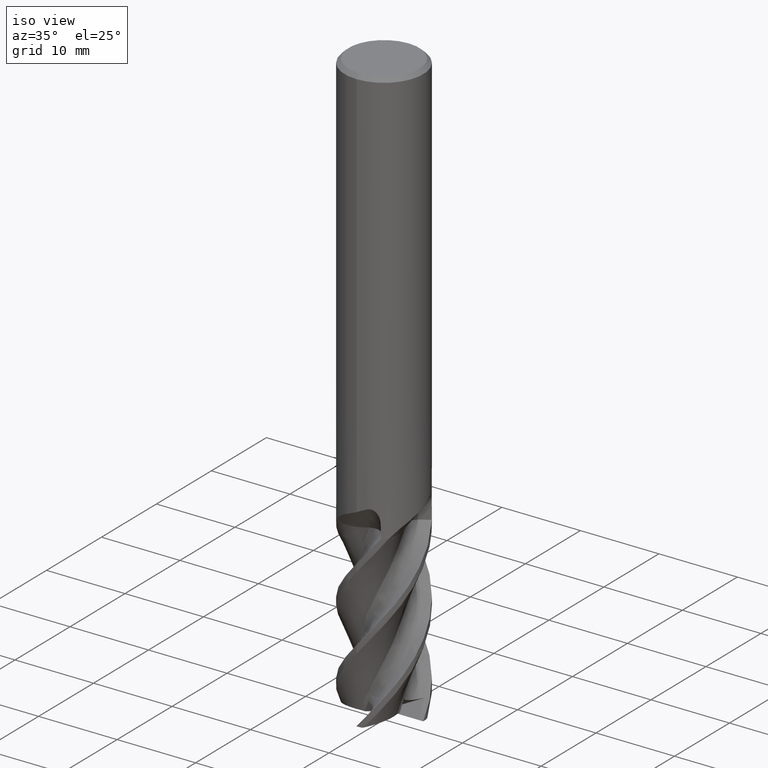
[diagram: clean part render]
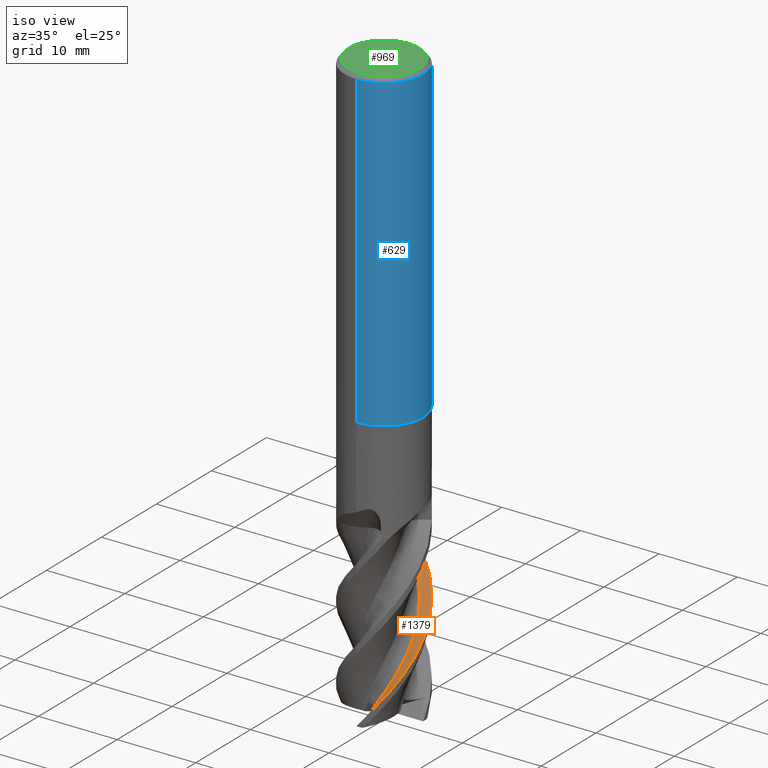
[diagram: same view with three faces highlighted in distinct colors, each labeled with its STEP entity id]
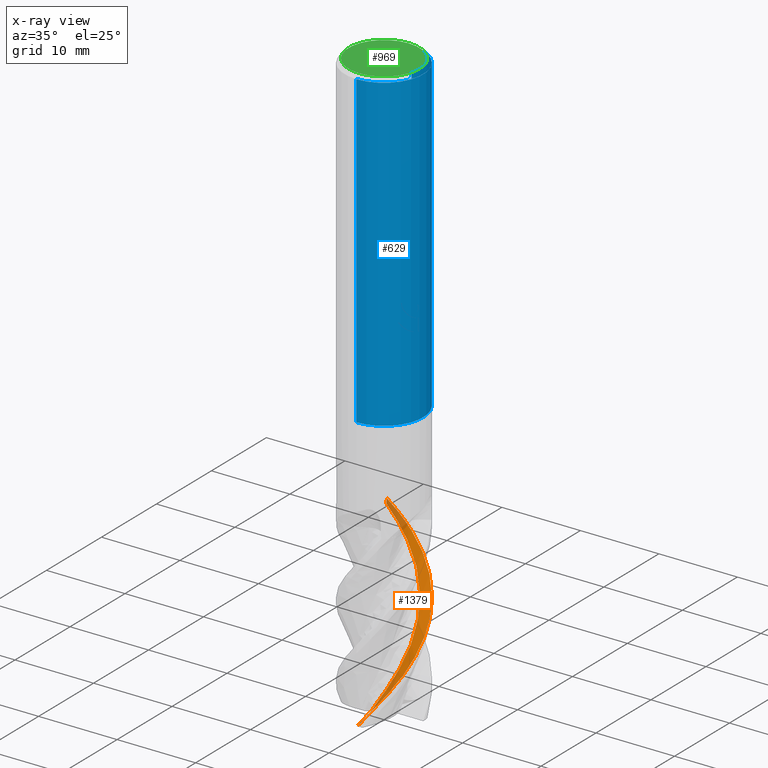
[diagram: x-ray of the same camera — body ghosted, the three highlighted faces saturated]
A machine part, iso view with three faces highlighted in distinct colors.
The next image is the same camera in x-ray (body ghosted, the three faces saturated) — at least one of them is partly hidden behind the body in this view.
Their STEP definitions:

[orange] entity #1379 — the highlighted face is a freeform B-spline surface patch.
#841=VERTEX_POINT('',#1856);
#881=VERTEX_POINT('',#1903);
#923=EDGE_CURVE('',#1193,#1201,#1947,.T.);
#987=EDGE_CURVE('',#841,#989,#2016,.T.);
#989=VERTEX_POINT('',#2018);
#1023=EDGE_CURVE('',#1457,#881,#2057,.T.);
#1099=EDGE_CURVE('',#1303,#1457,#2137,.T.);
#1193=VERTEX_POINT('',#2239);
#1201=VERTEX_POINT('',#2247);
#1303=VERTEX_POINT('',#2360);
#1357=EDGE_CURVE('',#881,#841,#2418,.T.);
#1379=ADVANCED_FACE('',(#2443),#2444,.T.);
#1389=EDGE_CURVE('',#989,#1193,#2455,.T.);
#1439=EDGE_CURVE('',#1201,#1303,#2510,.T.);
#1457=VERTEX_POINT('',#2532);
#1856=CARTESIAN_POINT('',(-7.65326625446156E-010,4.99991486074942,-56.269364871849));
#1903=CARTESIAN_POINT('',(-2.61261439095677,4.26300903754209,-53.0));
#1947=B_SPLINE_CURVE_WITH_KNOTS('',3,(#5087,#5088,#5089,#5090,#5091,#5092,#5093,#5094,#5095,#5096,#5097,#5098,#5099,#5100,#5101,#5102,#5103,#5104,#5105,#5106,#5107,#5108,#5109,#5110,#5111,#5112,#5113,#5114),.UNSPECIFIED.,.F.,.F.,(4,2,2,2,2,2,2,2,2,2,2,2,2,4),(0.0,0.818910027269427,1.139304190281,1.55244608751648,2.41847447880816,3.02823276560389,3.46285481992463,3.91399523409388,4.59992441175915,5.57162006165752,9.5524687004458,16.2999496018072,16.7000792223457,21.8881820002481),.UNSPECIFIED.);
#2016=B_SPLINE_CURVE_WITH_KNOTS('',3,(#5667,#5668,#5669,#5670,#5671,#5672,#5673,#5674,#5675,#5676,#5677,#5678,#5679,#5680,#5681,#5682,#5683,#5684,#5685,#5686,#5687,#5688,#5689,#5690,#5691,#5692,#5693,#5694,#5695,#5696,#5697,#5698,#5699,#5700,#5701,#5702,#5703,#5704,#5705,#5706,#5707,#5708),.UNSPECIFIED.,.F.,.F.,(4,2,2,2,2,2,2,2,2,2,2,2,2,2,2,2,2,2,2,2,4),(0.0,1.53652861004963,3.8725065586441,5.42160350032149,6.57529617109107,7.1477833631407,8.50903370962672,10.1654585054857,11.2927636974678,13.4999329352629,14.6132511811853,16.8163672943986,17.9185211648541,20.1098976477452,21.1923327849298,21.968897730353,23.3282770619923,24.3584957239759,25.8627631583905,26.6191248216013,27.3736435639775),.UNSPECIFIED.);
#2018=CARTESIAN_POINT('',(-1.67180449841524E-014,-4.99999994173844,-74.9871824572319));
#2057=B_SPLINE_CURVE_WITH_KNOTS('',3,(#6024,#6025,#6026,#6027,#6028,#6029),.UNSPECIFIED.,.F.,.F.,(4,2,4),(0.0,0.718749972684841,1.43749994537414),.UNSPECIFIED.);
#2137=B_SPLINE_CURVE_WITH_KNOTS('',3,(#6408,#6409,#6410,#6411,#6412,#6413,#6414,#6415,#6416,#6417,#6418,#6419,#6420,#6421,#6422,#6423,#6424,#6425,#6426,#6427,#6428,#6429,#6430,#6431,#6432,#6433,#6434,#6435,#6436,#6437,#6438,#6439,#6440,#6441,#6442,#6443,#6444,#6445,#6446,#6447,#6448,#6449,#6450,#6451,#6452,#6453,#6454,#6455,#6456,#6457,#6458,#6459,#6460),.UNSPECIFIED.,.F.,.F.,(4,1,2,1,2,1,2,1,2,1,2,1,2,1,2,1,2,1,2,1,2,1,2,1,2,1,2,1,2,1,2,1,2,1,4),(0.0,0.658549239123413,1.31709847824683,1.97564771737024,2.63419695649365,3.95129543474048,5.2683939129873,6.58549239123413,7.90259086948096,9.21968934772778,10.5367878259746,11.8538863042214,13.1709847824683,14.4880832607151,15.8051817389619,17.1222802172087,18.4393786954556,19.7564771737024,21.0735756519492,22.390674130196,23.7077726084429,25.0248710866897,26.3419695649365,27.6590680431833,28.9761665214302,30.293264999677,31.6103634779238,32.9274619561707,34.2445604344175,35.5616589126643,36.8787573909111,38.195855869158,39.5129543474048,40.8300528256516,42.1471513038984),.UNSPECIFIED.);
#2239=CARTESIAN_POINT('',(-0.000292842337415094,-4.99999993474591,-74.9875307460198));
#2247=CARTESIAN_POINT('',(1.41002267526632,-4.17503026798835,-73.0449553888539));
#2360=CARTESIAN_POINT('',(1.09334985087204,-3.60114669389617,-73.2244277868559));
#2418=B_SPLINE_CURVE_WITH_KNOTS('',3,(#8065,#8066,#8067,#8068,#8069,#8070,#8071,#8072,#8073,#8074,#8075,#8076,#8077,#8078,#8079,#8080,#8081,#8082,#8083,#8084,#8085,#8086,#8087,#8088,#8089,#8090,#8091,#8092,#8093,#8094,#8095,#8096,#8097,#8098,#8099,#8100,#8101,#8102,#8103,#8104,#8105,#8106),.UNSPECIFIED.,.F.,.F.,(4,2,2,2,2,2,2,2,2,2,2,2,2,2,2,2,2,2,2,2,4),(0.0,1.53652861004963,3.8725065586441,5.42160350032149,6.57529617109107,7.1477833631407,8.50903370962672,10.1654585054857,11.2927636974678,13.4999329352629,14.6132511811853,16.8163672943986,17.9185211648541,20.1098976477452,21.1923327849298,21.968897730353,23.3282770619923,24.3584957239759,25.8627631583905,26.6191248216013,27.3736435639775),.UNSPECIFIED.);
#2443=FACE_OUTER_BOUND('',#8157,.T.);
#2444=B_SPLINE_SURFACE_WITH_KNOTS('',3,3,((#8158,#8159,#8160,#8161,#8162,#8163,#8164,#8165,#8166,#8167,#8168,#8169,#8170,#8171,#8172,#8173,#8174,#8175,#8176,#8177,#8178,#8179,#8180,#8181,#8182,#8183,#8184,#8185,#8186,#8187,#8188,#8189,#8190,#8191,#8192,#8193,#8194,#8195,#8196,#8197,#8198,#8199,#8200,#8201,#8202,#8203,#8204,#8205,#8206,#8207,#8208,#8209,#8210),(#8211,#8212,#8213,#8214,#8215,#8216,#8217,#8218,#8219,#8220,#8221,#8222,#8223,#8224,#8225,#8226,#8227,#8228,#8229,#8230,#8231,#8232,#8233,#8234,#8235,#8236,#8237,#8238,#8239,#8240,#8241,#8242,#8243,#8244,#8245,#8246,#8247,#8248,#8249,#8250,#8251,#8252,#8253,#8254,#8255,#8256,#8257,#8258,#8259,#8260,#8261,#8262,#8263),(#8264,#8265,#8266,#8267,#8268,#8269,#8270,#8271,#8272,#8273,#8274,#8275,#8276,#8277,#8278,#8279,#8280,#8281,#8282,#8283,#8284,#8285,#8286,#8287,#8288,#8289,#8290,#8291,#8292,#8293,#8294,#8295,#8296,#8297,#8298,#8299,#8300,#8301,#8302,#8303,#8304,#8305,#8306,#8307,#8308,#8309,#8310,#8311,#8312,#8313,#8314,#8315,#8316),(#8317,#8318,#8319,#8320,#8321,#8322,#8323,#8324,#8325,#8326,#8327,#8328,#8329,#8330,#8331,#8332,#8333,#8334,#8335,#8336,#8337,#8338,#8339,#8340,#8341,#8342,#8343,#8344,#8345,#8346,#8347,#8348,#8349,#8350,#8351,#8352,#8353,#8354,#8355,#8356,#8357,#8358,#8359,#8360,#8361,#8362,#8363,#8364,#8365,#8366,#8367,#8368,#8369)),.UNSPECIFIED.,.F.,.F.,.F.,(4,4),(4,1,2,1,2,1,2,1,2,1,2,1,2,1,2,1,2,1,2,1,2,1,2,1,2,1,2,1,2,1,2,1,2,1,4),(0.0,1.4375),(0.0,0.658549239123413,1.31709847824683,1.97564771737024,2.63419695649365,3.95129543474048,5.2683939129873,6.58549239123413,7.90259086948096,9.21968934772778,10.5367878259746,11.8538863042214,13.1709847824683,14.4880832607151,15.8051817389619,17.1222802172087,18.4393786954556,19.7564771737024,21.0735756519492,22.390674130196,23.7077726084429,25.0248710866897,26.3419695649365,27.6590680431833,28.9761665214302,30.293264999677,31.6103634779238,32.9274619561707,34.2445604344175,35.5616589126643,36.8787573909111,38.195855869158,39.5129543474048,40.8300528256516,42.1471513038984),.UNSPECIFIED.);
#2455=B_SPLINE_CURVE_WITH_KNOTS('',3,(#8605,#8606,#8607,#8608,#8609,#8610,#8611,#8612,#8613,#8614,#8615,#8616,#8617,#8618,#8619,#8620,#8621,#8622,#8623,#8624,#8625,#8626,#8627,#8628,#8629,#8630,#8631,#8632,#8633,#8634,#8635,#8636,#8637,#8638,#8639,#8640,#8641,#8642,#8643,#8644,#8645,#8646),.UNSPECIFIED.,.F.,.F.,(4,2,2,2,2,2,2,2,2,2,2,2,2,2,2,2,2,2,2,2,4),(0.0,1.53652861004963,3.8725065586441,5.42160350032149,6.57529617109107,7.1477833631407,8.50903370962672,10.1654585054857,11.2927636974678,13.4999329352629,14.6132511811853,16.8163672943986,17.9185211648541,20.1098976477452,21.1923327849298,21.968897730353,23.3282770619923,24.3584957239759,25.8627631583905,26.6191248216013,27.3736435639775),.UNSPECIFIED.);
#2510=B_SPLINE_CURVE_WITH_KNOTS('',3,(#9616,#9617,#9618,#9619,#9620,#9621),.UNSPECIFIED.,.F.,.F.,(4,2,4),(0.0,0.752535492609384,1.51115268182924),.UNSPECIFIED.);
#2532=CARTESIAN_POINT('',(-1.96059927409612,3.21236791552506,-53.0));
#5087=CARTESIAN_POINT('',(-0.00509907215996025,-5.11290642858239,-74.9938674179884));
#5088=CARTESIAN_POINT('',(0.00493925825145611,-4.84043774036645,-74.9807269565458));
#5089=CARTESIAN_POINT('',(0.0202261561503288,-4.68909296164231,-74.9600373415671));
#5090=CARTESIAN_POINT('',(0.0581561953219352,-4.55298202195657,-74.9080856327629));
#5091=CARTESIAN_POINT('',(0.0710244248506431,-4.52152494355637,-74.8904224815266));
#5092=CARTESIAN_POINT('',(0.107596509648929,-4.46040126615182,-74.8401502076377));
#5093=CARTESIAN_POINT('',(0.133655054515092,-4.43342970588084,-74.8042872393337));
#5094=CARTESIAN_POINT('',(0.238971433150938,-4.36212152233842,-74.6592489356774));
#5095=CARTESIAN_POINT('',(0.341823032197614,-4.33340506696298,-74.5174996861231));
#5096=CARTESIAN_POINT('',(0.405866587306567,-4.31618664710234,-74.4292336654682));
#5097=CARTESIAN_POINT('',(0.433195035938753,-4.31037421216321,-74.3915651365869));
#5098=CARTESIAN_POINT('',(0.478624698638012,-4.30202765650868,-74.3289431720632));
#5099=CARTESIAN_POINT('',(0.497789043384655,-4.29890955131616,-74.3025252775519));
#5100=CARTESIAN_POINT('',(0.536337850246815,-4.2931479074456,-74.2493847444821));
#5101=CARTESIAN_POINT('',(0.556241182464059,-4.2904471023485,-74.2219467777625));
#5102=CARTESIAN_POINT('',(0.605687201260473,-4.28414628404246,-74.1537813493613));
#5103=CARTESIAN_POINT('',(0.636649298760356,-4.28058640227128,-74.1110965432735));
#5104=CARTESIAN_POINT('',(0.707964866125913,-4.27271053970132,-74.0127790127445));
#5105=CARTESIAN_POINT('',(0.749235699063434,-4.26841738256696,-73.9558812676711));
#5106=CARTESIAN_POINT('',(0.986779491703851,-4.24312559251426,-73.6283946771745));
#5107=CARTESIAN_POINT('',(1.1207919348293,-4.22721026069271,-73.4436444444906));
#5108=CARTESIAN_POINT('',(1.61288815638279,-4.14038459555574,-72.765311180116));
#5109=CARTESIAN_POINT('',(1.90814684804338,-4.05991748490139,-72.3583829456257));
#5110=CARTESIAN_POINT('',(2.22528598728239,-3.93670771729118,-71.9213935708557));
#5111=CARTESIAN_POINT('',(2.24302346341751,-3.92968704730011,-71.8969532485149));
#5112=CARTESIAN_POINT('',(2.49054582366674,-3.83019432385926,-71.5558981417049));
#5113=CARTESIAN_POINT('',(2.66912915023488,-3.75628923888835,-71.3098379364503));
#5114=CARTESIAN_POINT('',(2.87588199104898,-3.66075174243122,-71.0249901781374));
#5667=CARTESIAN_POINT('',(-2.61261439095677,4.2630090375421,-53.0));
#5668=CARTESIAN_POINT('',(-2.33168004558554,4.4351836725836,-53.3921176506064));
#5669=CARTESIAN_POINT('',(-2.03673509544618,4.57814624311085,-53.7713207831301));
#5670=CARTESIAN_POINT('',(-1.25704679896179,4.8651927457005,-54.7638825652976));
#5671=CARTESIAN_POINT('',(-0.761107324385879,4.96746327774888,-55.373158147886));
#5672=CARTESIAN_POINT('',(0.0790656595763085,5.01053121202835,-56.3637523834356));
#5673=CARTESIAN_POINT('',(0.416518365996174,4.99412878286698,-56.7611516654567));
#5674=CARTESIAN_POINT('',(1.00307250685836,4.90481280183536,-57.4740158585334));
#5675=CARTESIAN_POINT('',(1.25061919179365,4.8476538876043,-57.7795899249475));
#5676=CARTESIAN_POINT('',(1.61349589479844,4.73410716490701,-58.2338579557111));
#5677=CARTESIAN_POINT('',(1.73281234998994,4.69177392648897,-58.3842908734686));
#5678=CARTESIAN_POINT('',(2.13141117214381,4.53294467198142,-58.8905733096228));
#5679=CARTESIAN_POINT('',(2.40123121220013,4.39616840391013,-59.2443495991072));
#5680=CARTESIAN_POINT('',(2.97348756051828,4.03674191230227,-60.0544978895682));
#5681=CARTESIAN_POINT('',(3.26559886903402,3.80452283007607,-60.5034380490632));
#5682=CARTESIAN_POINT('',(3.70965563138546,3.36188905187369,-61.2481355311029));
#5683=CARTESIAN_POINT('',(3.87419014244613,3.17089455765674,-61.5404524431265));
#5684=CARTESIAN_POINT('',(4.31999634132499,2.56601732557089,-62.4339160892452));
#5685=CARTESIAN_POINT('',(4.55391772620417,2.12357044354596,-63.0368048380341));
#5686=CARTESIAN_POINT('',(4.80178830902073,1.41615351884807,-63.9256555975346));
#5687=CARTESIAN_POINT('',(4.86640822460394,1.17515797025241,-64.215160052872));
#5688=CARTESIAN_POINT('',(5.0055978720365,0.438031494846633,-65.1082176862449));
#5689=CARTESIAN_POINT('',(5.02450449832303,-0.0635432228684398,-65.7127725922448));
#5690=CARTESIAN_POINT('',(4.9404004770492,-0.809107749185026,-66.601057502832));
#5691=CARTESIAN_POINT('',(4.8941938389867,-1.05335629132313,-66.8898525105129));
#5692=CARTESIAN_POINT('',(4.69970447192065,-1.77812959396181,-67.7843461822159));
#5693=CARTESIAN_POINT('',(4.49845069719367,-2.23956275262033,-68.3905914023174));
#5694=CARTESIAN_POINT('',(4.09882127836186,-2.87417627473842,-69.2770402795582));
#5695=CARTESIAN_POINT('',(3.95223577838147,-3.07275341247817,-69.5643887302561));
#5696=CARTESIAN_POINT('',(3.67274960617241,-3.39745716730654,-70.0756255298554));
#5697=CARTESIAN_POINT('',(3.54907444877281,-3.52641288637777,-70.2900765120168));
#5698=CARTESIAN_POINT('',(3.19158127875147,-3.86145760756478,-70.8793305366102));
#5699=CARTESIAN_POINT('',(2.94333353528893,-4.05413745722418,-71.2558811808448));
#5700=CARTESIAN_POINT('',(2.47521932738776,-4.35089034823269,-71.9104101468572));
#5701=CARTESIAN_POINT('',(2.26576768677861,-4.46363918758356,-72.1874452171916));
#5702=CARTESIAN_POINT('',(1.72561286428544,-4.70591340091661,-72.8937297184183));
#5703=CARTESIAN_POINT('',(1.39111136930597,-4.81535751164769,-73.3175233325412));
#5704=CARTESIAN_POINT('',(0.875905304157877,-4.92583215434585,-73.9483247562566));
#5705=CARTESIAN_POINT('',(0.700815825954719,-4.95384155466905,-74.1590797955766));
#5706=CARTESIAN_POINT('',(0.34696433149491,-4.99110902787555,-74.5776714878327));
#5707=CARTESIAN_POINT('',(0.16959639438435,-5.00037612590725,-74.7854062928888));
#5708=CARTESIAN_POINT('',(-0.0107752814717103,-4.99998838931744,-75.0));
#6024=CARTESIAN_POINT('',(-1.96059927418109,3.21236791547233,-53.0));
#6025=CARTESIAN_POINT('',(-2.08693199821651,3.41593660679313,-53.0));
#6026=CARTESIAN_POINT('',(-2.21326452617912,3.61950541979492,-53.0));
#6027=CARTESIAN_POINT('',(-2.46592918995726,4.02664328916154,-53.0));
#6028=CARTESIAN_POINT('',(-2.59226132577292,4.23021234552656,-53.0));
#6029=CARTESIAN_POINT('',(-2.71859326551368,4.43378152357256,-53.0));
#6408=CARTESIAN_POINT('',(-3.75846504508571,0.174203199938611,-85.0));
#6409=CARTESIAN_POINT('',(-3.75922417421371,0.180367674164918,-84.781257534348));
#6410=CARTESIAN_POINT('',(-3.76659625728198,0.101343983706272,-84.3437017067897));
#6411=CARTESIAN_POINT('',(-3.76514038195834,-0.166872443505842,-83.9061227876956));
#6412=CARTESIAN_POINT('',(-3.73059290488503,-0.525748748329141,-83.4686790293266));
#6413=CARTESIAN_POINT('',(-3.67418562141778,-0.853419521872618,-83.0312599785647));
#6414=CARTESIAN_POINT('',(-3.59371181488687,-1.12390867597708,-82.5937922235737));
#6415=CARTESIAN_POINT('',(-3.46384525798217,-1.49508836855377,-81.9374991454781));
#6416=CARTESIAN_POINT('',(-3.2393925556906,-1.97184736327811,-81.0624396209978));
#6417=CARTESIAN_POINT('',(-2.90400512153349,-2.4110401264588,-80.1874068062779));
#6418=CARTESIAN_POINT('',(-2.50649264281788,-2.82167058888249,-79.3124420205515));
#6419=CARTESIAN_POINT('',(-2.07729339410272,-3.17357801079059,-78.4374849235509));
#6420=CARTESIAN_POINT('',(-1.58763876135109,-3.42370937660027,-77.5624771201081));
#6421=CARTESIAN_POINT('',(-1.06179339499986,-3.62139719684409,-76.6874636115137));
#6422=CARTESIAN_POINT('',(-0.528045233548038,-3.7560348194121,-75.812465434064));
#6423=CARTESIAN_POINT('',(0.02275638126561,-3.77389672882266,-74.9374521777107));
#6424=CARTESIAN_POINT('',(0.583877475730668,-3.72844242991629,-74.0624554440398));
#6425=CARTESIAN_POINT('',(1.12416091114104,-3.62250415173364,-73.1874694992744));
#6426=CARTESIAN_POINT('',(1.62960945578931,-3.40400478492427,-72.3124569222851));
#6427=CARTESIAN_POINT('',(2.11788147370052,-3.12358907741629,-71.4374554871606));
#6428=CARTESIAN_POINT('',(2.56162684890057,-2.79723400787934,-70.5624665057969));
#6429=CARTESIAN_POINT('',(2.92567780536026,-2.38395213524524,-69.6874539774211));
#6430=CARTESIAN_POINT('',(3.24765439708875,-1.92222254608529,-68.8124536161588));
#6431=CARTESIAN_POINT('',(3.50980338627726,-1.43794004710195,-67.9374652209048));
#6432=CARTESIAN_POINT('',(3.66288554470886,-0.908908693787539,-67.0624526373256));
#6433=CARTESIAN_POINT('',(3.7572548754488,-0.353901504744772,-66.1874521349676));
#6434=CARTESIAN_POINT('',(3.78787536081154,0.195986430718189,-65.3124636789923));
#6435=CARTESIAN_POINT('',(3.70074520138514,0.739810773391773,-64.4374510979044));
#6436=CARTESIAN_POINT('',(3.54943330720816,1.28207916639166,-63.5624505838795));
#6437=CARTESIAN_POINT('',(3.34264164739798,1.79252633141488,-62.6874621329671));
#6438=CARTESIAN_POINT('',(3.03193515623659,2.24726530458449,-61.812449551569));
#6439=CARTESIAN_POINT('',(2.66384433912378,2.67322628111993,-60.9374490151771));
#6440=CARTESIAN_POINT('',(2.25913979009173,3.04675106378391,-60.0624605524643));
#6441=CARTESIAN_POINT('',(1.78419724096644,3.32557940563273,-59.1874479820501));
#6442=CARTESIAN_POINT('',(1.26962301412973,3.55390890138633,-58.3124474617861));
#6443=CARTESIAN_POINT('',(0.744294017361509,3.71919688362253,-57.4374589866491));
#6444=CARTESIAN_POINT('',(0.195814907648406,3.76888495198699,-56.5624463791087));
#6445=CARTESIAN_POINT('',(-0.366981426245853,3.75599902673512,-55.6874458281175));
#6446=CARTESIAN_POINT('',(-0.912657474235505,3.68150497461483,-54.8124574190809));
#6447=CARTESIAN_POINT('',(-1.43001184003837,3.49254974213338,-53.937445075685));
#6448=CARTESIAN_POINT('',(-1.93362453138251,3.2408801103062,-53.0624448592306));
#6449=CARTESIAN_POINT('',(-2.39540700196463,2.94081705337123,-52.1874561530978));
#6450=CARTESIAN_POINT('',(-2.78278411132209,2.54930803179663,-51.3124425858343));
#6451=CARTESIAN_POINT('',(-3.1310410631116,2.10684892968575,-50.4374410272394));
#6452=CARTESIAN_POINT('',(-3.42082265904292,1.63839330809177,-49.5624537630129));
#6453=CARTESIAN_POINT('',(-3.60409016617578,1.11945713400965,-48.6874443570381));
#6454=CARTESIAN_POINT('',(-3.73030487991702,0.571684806512778,-47.8124462662842));
#6455=CARTESIAN_POINT('',(-3.79294591409017,0.0247414562725732,-46.9374525722856));
#6456=CARTESIAN_POINT('',(-3.73729567898617,-0.525697689422165,-46.0624311257452));
#6457=CARTESIAN_POINT('',(-3.61626740837627,-1.07977270741543,-45.1874270825808));
#6458=CARTESIAN_POINT('',(-3.43806007058996,-1.60075189261619,-44.3124557440473));
#6459=CARTESIAN_POINT('',(-3.15984968329935,-2.0627164329609,-43.4374654493909));
#6460=CARTESIAN_POINT('',(-2.99429631365515,-2.27997981087199,-42.9999677084395));
#8065=CARTESIAN_POINT('',(-2.61261439095677,4.2630090375421,-53.0));
#8066=CARTESIAN_POINT('',(-2.33168004558554,4.4351836725836,-53.3921176506064));
#8067=CARTESIAN_POINT('',(-2.03673509544618,4.57814624311085,-53.7713207831301));
#8068=CARTESIAN_POINT('',(-1.25704679896179,4.8651927457005,-54.7638825652976));
#8069=CARTESIAN_POINT('',(-0.761107324385879,4.96746327774888,-55.373158147886));
#8070=CARTESIAN_POINT('',(0.0790656595763085,5.01053121202835,-56.3637523834356));
#8071=CARTESIAN_POINT('',(0.416518365996174,4.99412878286698,-56.7611516654567));
#8072=CARTESIAN_POINT('',(1.00307250685836,4.90481280183536,-57.4740158585334));
#8073=CARTESIAN_POINT('',(1.25061919179365,4.8476538876043,-57.7795899249475));
#8074=CARTESIAN_POINT('',(1.61349589479844,4.73410716490701,-58.2338579557111));
#8075=CARTESIAN_POINT('',(1.73281234998994,4.69177392648897,-58.3842908734686));
#8076=CARTESIAN_POINT('',(2.13141117214381,4.53294467198142,-58.8905733096228));
#8077=CARTESIAN_POINT('',(2.40123121220013,4.39616840391013,-59.2443495991072));
#8078=CARTESIAN_POINT('',(2.97348756051828,4.03674191230227,-60.0544978895682));
#8079=CARTESIAN_POINT('',(3.26559886903402,3.80452283007607,-60.5034380490632));
#8080=CARTESIAN_POINT('',(3.70965563138546,3.36188905187369,-61.2481355311029));
#8081=CARTESIAN_POINT('',(3.87419014244613,3.17089455765674,-61.5404524431265));
#8082=CARTESIAN_POINT('',(4.31999634132499,2.56601732557089,-62.4339160892452));
#8083=CARTESIAN_POINT('',(4.55391772620417,2.12357044354596,-63.0368048380341));
#8084=CARTESIAN_POINT('',(4.80178830902073,1.41615351884807,-63.9256555975346));
#8085=CARTESIAN_POINT('',(4.86640822460394,1.17515797025241,-64.215160052872));
#8086=CARTESIAN_POINT('',(5.0055978720365,0.438031494846633,-65.1082176862449));
#8087=CARTESIAN_POINT('',(5.02450449832303,-0.0635432228684398,-65.7127725922448));
#8088=CARTESIAN_POINT('',(4.9404004770492,-0.809107749185026,-66.601057502832));
#8089=CARTESIAN_POINT('',(4.8941938389867,-1.05335629132313,-66.8898525105129));
#8090=CARTESIAN_POINT('',(4.69970447192065,-1.77812959396181,-67.7843461822159));
#8091=CARTESIAN_POINT('',(4.49845069719367,-2.23956275262033,-68.3905914023174));
#8092=CARTESIAN_POINT('',(4.09882127836186,-2.87417627473842,-69.2770402795582));
#8093=CARTESIAN_POINT('',(3.95223577838147,-3.07275341247817,-69.5643887302561));
#8094=CARTESIAN_POINT('',(3.67274960617241,-3.39745716730654,-70.0756255298554));
#8095=CARTESIAN_POINT('',(3.54907444877281,-3.52641288637777,-70.2900765120168));
#8096=CARTESIAN_POINT('',(3.19158127875147,-3.86145760756478,-70.8793305366102));
#8097=CARTESIAN_POINT('',(2.94333353528893,-4.05413745722418,-71.2558811808448));
#8098=CARTESIAN_POINT('',(2.47521932738776,-4.35089034823269,-71.9104101468572));
#8099=CARTESIAN_POINT('',(2.26576768677861,-4.46363918758356,-72.1874452171916));
#8100=CARTESIAN_POINT('',(1.72561286428544,-4.70591340091661,-72.8937297184183));
#8101=CARTESIAN_POINT('',(1.39111136930597,-4.81535751164769,-73.3175233325412));
#8102=CARTESIAN_POINT('',(0.875905304157877,-4.92583215434585,-73.9483247562566));
#8103=CARTESIAN_POINT('',(0.700815825954719,-4.95384155466905,-74.1590797955766));
#8104=CARTESIAN_POINT('',(0.34696433149491,-4.99110902787555,-74.5776714878327));
#8105=CARTESIAN_POINT('',(0.16959639438435,-5.00037612590725,-74.7854062928888));
#8106=CARTESIAN_POINT('',(-0.0107752814717103,-4.99998838931744,-75.0));
#8157=EDGE_LOOP('',(#11607,#11608,#11609,#11610,#11611,#11612,#11613));
#8158=CARTESIAN_POINT('',(-3.75846504509034,0.174203199838718,-85.0));
#8159=CARTESIAN_POINT('',(-3.75922417421834,0.180367674065086,-84.781257534348));
#8160=CARTESIAN_POINT('',(-3.76659625728186,0.101343983606238,-84.3437017067897));
#8161=CARTESIAN_POINT('',(-3.76514038195602,-0.166872443605937,-83.9061227876956));
#8162=CARTESIAN_POINT('',(-3.73059290486704,-0.525748748428011,-83.4686790293266));
#8163=CARTESIAN_POINT('',(-3.67418562139574,-0.853419521970376,-83.0312599785651));
#8164=CARTESIAN_POINT('',(-3.59371181485703,-1.12390867607199,-82.5937922235727));
#8165=CARTESIAN_POINT('',(-3.46384525794051,-1.4950883686463,-81.9374991454801));
#8166=CARTESIAN_POINT('',(-3.23939255563683,-1.97184736336328,-81.0624396209969));
#8167=CARTESIAN_POINT('',(-2.90400512147148,-2.41104012653563,-80.1874068062779));
#8168=CARTESIAN_POINT('',(-2.50649264273974,-2.82167058894835,-79.3124420205515));
#8169=CARTESIAN_POINT('',(-2.07729339401847,-3.17357801084494,-78.4374849235529));
#8170=CARTESIAN_POINT('',(-1.58763876126148,-3.42370937664237,-77.5624771201042));
#8171=CARTESIAN_POINT('',(-1.06179339490174,-3.62139719687097,-76.6874636115176));
#8172=CARTESIAN_POINT('',(-0.528045233448861,-3.75603481942354,-75.812465434062));
#8173=CARTESIAN_POINT('',(0.0227563813656532,-3.77389672882558,-74.9374521777107));
#8174=CARTESIAN_POINT('',(0.583877475829847,-3.72844242989575,-74.0624554440398));
#8175=CARTESIAN_POINT('',(1.12416091123712,-3.62250415170346,-73.1874694992783));
#8176=CARTESIAN_POINT('',(1.6296094558791,-3.40400478488374,-72.3124569222773));
#8177=CARTESIAN_POINT('',(2.11788147378342,-3.12358907735593,-71.4374554871685));
#8178=CARTESIAN_POINT('',(2.56162684897544,-2.79723400781252,-70.5624665057969));
#8179=CARTESIAN_POINT('',(2.92567780542057,-2.38395213516687,-69.6874539774133));
#8180=CARTESIAN_POINT('',(3.24765439714162,-1.92222254599876,-68.8124536161666));
#8181=CARTESIAN_POINT('',(3.50980338631336,-1.43794004700814,-67.9374652209009));
#8182=CARTESIAN_POINT('',(3.66288554473263,-0.908908693690412,-67.0624526373256));
#8183=CARTESIAN_POINT('',(3.7572548754571,-0.353901504644488,-66.1874521349676));
#8184=CARTESIAN_POINT('',(3.78787536080733,0.195986430818265,-65.3124636790001));
#8185=CARTESIAN_POINT('',(3.70074520136158,0.739810773490634,-64.4374510978889));
#8186=CARTESIAN_POINT('',(3.54943330717654,1.28207916648504,-63.5624505838951));
#8187=CARTESIAN_POINT('',(3.34264164734698,1.79252633150535,-62.6874621329593));
#8188=CARTESIAN_POINT('',(3.03193515617853,2.24726530466125,-61.812449551569));
#8189=CARTESIAN_POINT('',(2.66384433904996,2.67322628119352,-60.9374490151771));
#8190=CARTESIAN_POINT('',(2.25913979001121,3.04675106383931,-60.0624605524643));
#8191=CARTESIAN_POINT('',(1.7841972408782,3.32557940568417,-59.1874479820501));
#8192=CARTESIAN_POINT('',(1.26962301403457,3.55390890141466,-58.3124474617861));
#8193=CARTESIAN_POINT('',(0.744294017262821,3.71919688364569,-57.4374589866491));
#8194=CARTESIAN_POINT('',(0.195814907548146,3.76888495198788,-56.5624463791087));
#8195=CARTESIAN_POINT('',(-0.3669814263455,3.75599902672818,-55.6874458281175));
#8196=CARTESIAN_POINT('',(-0.912657474333065,3.68150497458839,-54.8124574190731));
#8197=CARTESIAN_POINT('',(-1.43001184013111,3.49254974209404,-53.9374450757006));
#8198=CARTESIAN_POINT('',(-1.93362453146801,3.24088011025482,-53.062444859215));
#8199=CARTESIAN_POINT('',(-2.39540700204253,2.94081705330688,-52.1874561530901));
#8200=CARTESIAN_POINT('',(-2.78278411138902,2.54930803172176,-51.3124425858655));
#8201=CARTESIAN_POINT('',(-3.13104106316721,2.10684892960255,-50.4374410272082));
#8202=CARTESIAN_POINT('',(-3.42082265908543,1.63839330800024,-49.5624537630285));
#8203=CARTESIAN_POINT('',(-3.60409016620524,1.11945713391387,-48.6874443570381));
#8204=CARTESIAN_POINT('',(-3.73030487993103,0.571684806413347,-47.8124462662842));
#8205=CARTESIAN_POINT('',(-3.79294591409001,0.0247414561718516,-46.93745257227));
#8206=CARTESIAN_POINT('',(-3.737295678972,-0.525697689521288,-46.0624311257765));
#8207=CARTESIAN_POINT('',(-3.61626740834633,-1.07977270751138,-45.1874270825496));
#8208=CARTESIAN_POINT('',(-3.43806007054787,-1.60075189270756,-44.312455744063));
#8209=CARTESIAN_POINT('',(-3.15984968324221,-2.06271643304369,-43.4374654493909));
#8210=CARTESIAN_POINT('',(-2.99429631359394,-2.27997981095106,-42.9999677084396));
#8211=CARTESIAN_POINT('',(-4.23711784707065,0.19638854644076,-85.0));
#8212=CARTESIAN_POINT('',(-4.23794062249673,0.201179436900481,-84.7812578435563));
#8213=CARTESIAN_POINT('',(-4.2460803331588,0.109138485951662,-84.3436956172635));
#8214=CARTESIAN_POINT('',(-4.24409664395781,-0.193327536128675,-83.9061084096885));
#8215=CARTESIAN_POINT('',(-4.20501621095374,-0.596608487421843,-83.4686713030371));
#8216=CARTESIAN_POINT('',(-4.14133336875902,-0.965139550146092,-83.0312614327978));
#8217=CARTESIAN_POINT('',(-4.05039477232848,-1.2699353405888,-82.593797188511));
#8218=CARTESIAN_POINT('',(-3.90350369126888,-1.68855678255918,-81.9374991356436));
#8219=CARTESIAN_POINT('',(-3.64979057359648,-2.22617465845186,-81.0624329669593));
#8220=CARTESIAN_POINT('',(-3.27124082255499,-2.72096248702242,-80.1873966213073));
#8221=CARTESIAN_POINT('',(-2.8229456855589,-3.18329307355221,-79.3124359088237));
#8222=CARTESIAN_POINT('',(-2.33876520563161,-3.57961531433789,-78.4374836863296));
#8223=CARTESIAN_POINT('',(-1.78643198263717,-3.86115252371355,-77.5624750778767));
#8224=CARTESIAN_POINT('',(-1.19357490180921,-4.08346676609695,-76.6874600371529));
#8225=CARTESIAN_POINT('',(-0.591661945200606,-4.23475933658083,-75.8124621678272));
#8226=CARTESIAN_POINT('',(0.0293539718017339,-4.25435091386449,-74.9374474585254));
#8227=CARTESIAN_POINT('',(0.661717076025444,-4.20259451894905,-74.0624511732849));
#8228=CARTESIAN_POINT('',(1.27076776870874,-4.08264084143962,-73.1874668415858));
#8229=CARTESIAN_POINT('',(1.8404244927543,-3.83578859567452,-72.3124529454844));
#8230=CARTESIAN_POINT('',(2.39046290166253,-3.5192897894259,-71.4374513608987));
#8231=CARTESIAN_POINT('',(2.89045843706128,-3.15091750442883,-70.5624636868881));
#8232=CARTESIAN_POINT('',(3.30049999199704,-2.68459799854828,-69.6874498669029));
#8233=CARTESIAN_POINT('',(3.66294730107358,-2.16390584601138,-68.8124494309178));
#8234=CARTESIAN_POINT('',(3.95805169971144,-1.61764685365583,-67.937462467379));
#8235=CARTESIAN_POINT('',(4.13011976055933,-1.0210337795758,-67.0624485052054));
#8236=CARTESIAN_POINT('',(4.23595604554261,-0.395428699556982,-66.1874480028474));
#8237=CARTESIAN_POINT('',(4.26995842287849,0.224577754726014,-65.3124608663496));
#8238=CARTESIAN_POINT('',(4.17118252300016,0.837630242419503,-64.4374470411454));
#8239=CARTESIAN_POINT('',(4.00013774215616,1.44864699290281,-63.5624463776748));
#8240=CARTESIAN_POINT('',(3.76650454704363,2.02396048706889,-62.6874593962856));
#8241=CARTESIAN_POINT('',(3.41574414228388,2.53635097742908,-61.8124454193211));
#8242=CARTESIAN_POINT('',(3.0004897367626,3.01608068355262,-60.9374448829292));
#8243=CARTESIAN_POINT('',(2.54384700627362,3.43683211333534,-60.0624577728718));
#8244=CARTESIAN_POINT('',(2.00809197730894,3.75072755584757,-59.1874438486276));
#8245=CARTESIAN_POINT('',(1.42793033979699,4.0075806197935,-58.3124433283636));
#8246=CARTESIAN_POINT('',(0.835485250934674,4.19343877987961,-57.4374562107932));
#8247=CARTESIAN_POINT('',(0.217048263522084,4.24891507095894,-56.5624422380938));
#8248=CARTESIAN_POINT('',(-0.417235052790672,4.23386274405219,-55.6874416871025));
#8249=CARTESIAN_POINT('',(-1.0323931120071,4.14935657166442,-54.8124546158436));
#8250=CARTESIAN_POINT('',(-1.61550042548027,3.93580356847772,-53.9374409812958));
#8251=CARTESIAN_POINT('',(-2.18285611535051,3.65168784615569,-53.0624407648102));
#8252=CARTESIAN_POINT('',(-2.70321437719236,3.31294038170613,-52.1874534856649));
#8253=CARTESIAN_POINT('',(-3.13957659328799,2.87114554906663,-51.3124383108592));
#8254=CARTESIAN_POINT('',(-3.53165951786123,2.37214976973516,-50.4374367522019));
#8255=CARTESIAN_POINT('',(-3.85793231182018,1.84371186418283,-49.5624508019605));
#8256=CARTESIAN_POINT('',(-4.06404546948231,1.25844502955053,-48.6874403647514));
#8257=CARTESIAN_POINT('',(-4.20578176555097,0.640950116489492,-47.8124428719048));
#8258=CARTESIAN_POINT('',(-4.2758874277425,0.0242270735210278,-46.9374501805367));
#8259=CARTESIAN_POINT('',(-4.21260100126799,-0.596276659307185,-46.0624264540729));
#8260=CARTESIAN_POINT('',(-4.07569431057026,-1.22056650350317,-45.1874215139853));
#8261=CARTESIAN_POINT('',(-3.87428815248698,-1.80778168303909,-44.3124525798971));
#8262=CARTESIAN_POINT('',(-3.56006622923984,-2.32849820347486,-43.4374619688278));
#8263=CARTESIAN_POINT('',(-3.3731948992297,-2.57329969816187,-42.9999640783996));
#8264=CARTESIAN_POINT('',(-4.71577064904156,0.218573893042167,-85.0));
#8265=CARTESIAN_POINT('',(-4.71665710542029,0.221991200888954,-84.7812581528398));
#8266=CARTESIAN_POINT('',(-4.72556437008339,0.116932987910637,-84.3436895270494));
#8267=CARTESIAN_POINT('',(-4.72305294918176,-0.219782629035817,-83.9060940329823));
#8268=CARTESIAN_POINT('',(-4.67943947383023,-0.667468226029499,-83.4686635754493));
#8269=CARTESIAN_POINT('',(-4.60848114161627,-1.07685957801723,-83.0312628963867));
#8270=CARTESIAN_POINT('',(-4.50707772205947,-1.41596200609556,-82.5938021360351));
#8271=CARTESIAN_POINT('',(-4.34316214009191,-1.88202519449378,-81.9374991606195));
#8272=CARTESIAN_POINT('',(-4.06018856313164,-2.48050197044054,-81.0624262955416));
#8273=CARTESIAN_POINT('',(-3.63847656498833,-3.03088481570123,-80.1873864362814));
#8274=CARTESIAN_POINT('',(-3.13939868704092,-3.54491558996265,-79.3124297971499));
#8275=CARTESIAN_POINT('',(-2.60023703835065,-3.98565261755892,-78.4374824728006));
#8276=CARTESIAN_POINT('',(-1.98522520314841,-4.29859563953612,-77.5624729882229));
#8277=CARTESIAN_POINT('',(-1.32535640958074,-4.5455363665491,-76.6874565102081));
#8278=CARTESIAN_POINT('',(-0.655278656858653,-4.713483817499,-75.8124588822478));
#8279=CARTESIAN_POINT('',(0.0359515629158194,-4.73480514017841,-74.9374427305751));
#8280=CARTESIAN_POINT('',(0.73955667554605,-4.67674656672546,-74.0624469112759));
#8281=CARTESIAN_POINT('',(1.41737461558806,-4.54277754138188,-73.1874642134127));
#8282=CARTESIAN_POINT('',(2.05123955147943,-4.26757242732512,-72.3124489009334));
#8283=CARTESIAN_POINT('',(2.663044307699,-3.91499048063375,-71.4374473023827));
#8284=CARTESIAN_POINT('',(3.21929005200539,-3.50460100039336,-70.5624608661335));
#8285=CARTESIAN_POINT('',(3.67532214672753,-2.9852438840832,-69.6874456923335));
#8286=CARTESIAN_POINT('',(4.07824023683639,-2.40558912387084,-68.8124453097233));
#8287=CARTESIAN_POINT('',(4.40629998335957,-1.79735367144124,-67.9374596829612));
#8288=CARTESIAN_POINT('',(4.59735400403595,-1.13315886534592,-67.0624443707648));
#8289=CARTESIAN_POINT('',(4.71465718796931,-0.436955894582885,-66.1874438730549));
#8290=CARTESIAN_POINT('',(4.7520415110836,0.2531690750204,-65.3124581275866));
#8291=CARTESIAN_POINT('',(4.64161981998213,0.935449718694701,-64.4374428342929));
#8292=CARTESIAN_POINT('',(4.45084220176414,1.615214811977,-63.5624423215157));
#8293=CARTESIAN_POINT('',(4.19036743825421,2.25539466141075,-62.6874565827271));
#8294=CARTESIAN_POINT('',(3.79955312071874,2.82543661998535,-61.8124412907487));
#8295=CARTESIAN_POINT('',(3.33713514214326,3.35893511611539,-60.9374407470571));
#8296=CARTESIAN_POINT('',(2.82855422186682,3.82691310948881,-60.0624550329025));
#8297=CARTESIAN_POINT('',(2.23198670739556,4.17587578248988,-59.1874396396444));
#8298=CARTESIAN_POINT('',(1.58623767190163,4.46125226172859,-58.3124392704482));
#8299=CARTESIAN_POINT('',(0.926676485861541,4.66768072805053,-57.4374533917498));
#8300=CARTESIAN_POINT('',(0.238281610642867,4.72894516248995,-56.5624381078856));
#8301=CARTESIAN_POINT('',(-0.467488670384231,4.71172648881444,-55.6874375352761));
#8302=CARTESIAN_POINT('',(-1.15212879513545,4.61720813291981,-54.8124518527989));
#8303=CARTESIAN_POINT('',(-1.80098892877361,4.37905743907337,-53.9374368172926));
#8304=CARTESIAN_POINT('',(-2.43208778126512,4.06249553786015,-53.0624367399999));
#8305=CARTESIAN_POINT('',(-3.01102170610632,3.68506372565636,-52.1874507354319));
#8306=CARTESIAN_POINT('',(-3.49636908561116,3.19298307953199,-51.3124341321074));
#8307=CARTESIAN_POINT('',(-3.93227796214917,2.63745059675622,-50.4374323809552));
#8308=CARTESIAN_POINT('',(-4.29504195661952,2.0490304261184,-49.5624478608188));
#8309=CARTESIAN_POINT('',(-4.52400079902545,1.39743292679838,-48.6874364288002));
#8310=CARTESIAN_POINT('',(-4.68125862491925,0.710215424953804,-47.8124394212254));
#8311=CARTESIAN_POINT('',(-4.75882894563135,0.0237126869621077,-46.9374478389429));
#8312=CARTESIAN_POINT('',(-4.68790634141072,-0.666855619666438,-46.0624217381713));
#8313=CARTESIAN_POINT('',(-4.53512119495504,-1.36136030891957,-45.1874159896299));
#8314=CARTESIAN_POINT('',(-4.31051626652866,-2.01481147440483,-44.3124492866954));
#8315=CARTESIAN_POINT('',(-3.96028272887087,-2.59427996242444,-43.4374587021844));
#8316=CARTESIAN_POINT('',(-3.75209348486642,-2.86661958537718,-42.9999604483638));
#8317=CARTESIAN_POINT('',(-5.19442345102187,0.240759239644209,-85.0));
#8318=CARTESIAN_POINT('',(-5.19537357236324,0.242802964589444,-84.7812584619751));
#8319=CARTESIAN_POINT('',(-5.20504841335141,0.124727487575611,-84.3436834398954));
#8320=CARTESIAN_POINT('',(-5.20200925773682,-0.246237717062749,-83.9060796503041));
#8321=CARTESIAN_POINT('',(-5.15386273336366,-0.738327969519137,-83.468655853831));
#8322=CARTESIAN_POINT('',(-5.07562891458925,-1.1885796038369,-83.0312643482838));
#8323=CARTESIAN_POINT('',(-4.96376067486477,-1.56198867082865,-82.5938071009735));
#8324=CARTESIAN_POINT('',(-4.78282058275257,-2.0754936079741,-81.937499150783));
#8325=CARTESIAN_POINT('',(-4.47058658022619,-2.73482924686456,-81.062419641504));
#8326=CARTESIAN_POINT('',(-4.00571225846975,-3.3408072139497,-80.1873762513108));
#8327=CARTESIAN_POINT('',(-3.45585173746216,-3.90653803680484,-79.3124236854221));
#8328=CARTESIAN_POINT('',(-2.86170884616274,-4.3916899399327,-78.4374812542619));
#8329=CARTESIAN_POINT('',(-2.1840184245241,-4.7360387866073,-77.5624709086262));
#8330=CARTESIAN_POINT('',(-1.45713791648821,-5.00760593577507,-76.6874529732126));
#8331=CARTESIAN_POINT('',(-0.718895363511709,-5.19220832554029,-75.8124555786438));
#8332=CARTESIAN_POINT('',(0.0425491431545244,-5.21525934344934,-74.937438048759));
#8333=CARTESIAN_POINT('',(0.817396285939022,-5.15089863754674,-74.0624426031518));
#8334=CARTESIAN_POINT('',(1.56398147815837,-5.00291422200203,-73.1874615744047));
#8335=CARTESIAN_POINT('',(2.26205456795988,-4.69935627457992,-72.3124449241404));
#8336=CARTESIAN_POINT('',(2.93562575597286,-4.31069115623968,-71.437443176113));
#8337=CARTESIAN_POINT('',(3.54812163477627,-3.85828451079182,-70.5624580845939));
#8338=CARTESIAN_POINT('',(4.05014432353917,-3.28588975636434,-69.6874415070847));
#8339=CARTESIAN_POINT('',(4.49353315053317,-2.64727241498372,-68.8124411992129));
#8340=CARTESIAN_POINT('',(4.85454826401357,-1.97706047832482,-67.9374568920702));
#8341=CARTESIAN_POINT('',(5.064588275586,-1.24528395965927,-67.0624402386446));
#8342=CARTESIAN_POINT('',(5.19335830233148,-0.47848308106742,-66.1874397409347));
#8343=CARTESIAN_POINT('',(5.23412460069201,0.281760387714959,-65.3124553523053));
#8344=CARTESIAN_POINT('',(5.11205714226952,1.03326920162199,-64.4374387028111));
#8345=CARTESIAN_POINT('',(4.90154663609494,1.78178262439635,-63.5624381900339));
#8346=CARTESIAN_POINT('',(4.61423033827528,2.4868288239735,-62.6874538086842));
#8347=CARTESIAN_POINT('',(4.18336210682409,3.11452229275318,-61.8124371585008));
#8348=CARTESIAN_POINT('',(3.6737805398559,3.70178951847449,-60.9374366148092));
#8349=CARTESIAN_POINT('',(3.11326143454446,4.21699418253181,-60.0624522159408));
#8350=CARTESIAN_POINT('',(2.45588145099586,4.60102388555933,-59.1874355809603));
#8351=CARTESIAN_POINT('',(1.74454499049451,4.91492402720139,-58.3124350622873));
#8352=CARTESIAN_POINT('',(1.01786772938339,5.14192260979942,-57.4374506532631));
#8353=CARTESIAN_POINT('',(0.259514954086359,5.20897526333713,-56.5624339668706));
#8354=CARTESIAN_POINT('',(-0.517742284298957,5.18959022426233,-55.6874333942611));
#8355=CARTESIAN_POINT('',(-1.27186443864215,5.08505973026619,-54.8124490495694));
#8356=CARTESIAN_POINT('',(-1.98647751498786,4.82231124679249,-53.9374327228878));
#8357=CARTESIAN_POINT('',(-2.68131936428253,4.47330329242558,-53.0624326455951));
#8358=CARTESIAN_POINT('',(-3.31882908613857,4.05718704960574,-52.1874479932683));
#8359=CARTESIAN_POINT('',(-3.8531615586104,3.51482058711203,-51.3124300065779));
#8360=CARTESIAN_POINT('',(-4.33289642574292,2.90275144665366,-50.4374279564722));
#8361=CARTESIAN_POINT('',(-4.73215160495847,2.25434897625204,-49.5624448997509));
#8362=CARTESIAN_POINT('',(-4.98395610219438,1.53642082476811,-48.6874325859904));
#8363=CARTESIAN_POINT('',(-5.15673551064733,0.77948073269688,-47.8124358773692));
#8364=CARTESIAN_POINT('',(-5.24177044989749,0.0231983050452721,-46.937445521948));
#8365=CARTESIAN_POINT('',(-5.16321168237127,-0.73743458858724,-46.0624170664677));
#8366=CARTESIAN_POINT('',(-4.99454807851441,-1.50215410577645,-45.1874104210655));
#8367=CARTESIAN_POINT('',(-4.74674435313391,-2.22184126452008,-44.3124460477911));
#8368=CARTESIAN_POINT('',(-4.36049928420078,-2.86006173242307,-43.4374553710981));
#8369=CARTESIAN_POINT('',(-4.13099207050219,-3.15993947258799,-42.9999568183239));
#8605=CARTESIAN_POINT('',(-2.61261439095677,4.2630090375421,-53.0));
#8606=CARTESIAN_POINT('',(-2.33168004558554,4.4351836725836,-53.3921176506064));
#8607=CARTESIAN_POINT('',(-2.03673509544618,4.57814624311085,-53.7713207831301));
#8608=CARTESIAN_POINT('',(-1.25704679896179,4.8651927457005,-54.7638825652976));
#8609=CARTESIAN_POINT('',(-0.761107324385879,4.96746327774888,-55.373158147886));
#8610=CARTESIAN_POINT('',(0.0790656595763085,5.01053121202835,-56.3637523834356));
#8611=CARTESIAN_POINT('',(0.416518365996174,4.99412878286698,-56.7611516654567));
#8612=CARTESIAN_POINT('',(1.00307250685836,4.90481280183536,-57.4740158585334));
#8613=CARTESIAN_POINT('',(1.25061919179365,4.8476538876043,-57.7795899249475));
#8614=CARTESIAN_POINT('',(1.61349589479844,4.73410716490701,-58.2338579557111));
#8615=CARTESIAN_POINT('',(1.73281234998994,4.69177392648897,-58.3842908734686));
#8616=CARTESIAN_POINT('',(2.13141117214381,4.53294467198142,-58.8905733096228));
#8617=CARTESIAN_POINT('',(2.40123121220013,4.39616840391013,-59.2443495991072));
#8618=CARTESIAN_POINT('',(2.97348756051828,4.03674191230227,-60.0544978895682));
#8619=CARTESIAN_POINT('',(3.26559886903402,3.80452283007607,-60.5034380490632));
#8620=CARTESIAN_POINT('',(3.70965563138546,3.36188905187369,-61.2481355311029));
#8621=CARTESIAN_POINT('',(3.87419014244613,3.17089455765674,-61.5404524431265));
#8622=CARTESIAN_POINT('',(4.31999634132499,2.56601732557089,-62.4339160892452));
#8623=CARTESIAN_POINT('',(4.55391772620417,2.12357044354596,-63.0368048380341));
#8624=CARTESIAN_POINT('',(4.80178830902073,1.41615351884807,-63.9256555975346));
#8625=CARTESIAN_POINT('',(4.86640822460394,1.17515797025241,-64.215160052872));
#8626=CARTESIAN_POINT('',(5.0055978720365,0.438031494846633,-65.1082176862449));
#8627=CARTESIAN_POINT('',(5.02450449832303,-0.0635432228684398,-65.7127725922448));
#8628=CARTESIAN_POINT('',(4.9404004770492,-0.809107749185026,-66.601057502832));
#8629=CARTESIAN_POINT('',(4.8941938389867,-1.05335629132313,-66.8898525105129));
#8630=CARTESIAN_POINT('',(4.69970447192065,-1.77812959396181,-67.7843461822159));
#8631=CARTESIAN_POINT('',(4.49845069719367,-2.23956275262033,-68.3905914023174));
#8632=CARTESIAN_POINT('',(4.09882127836186,-2.87417627473842,-69.2770402795582));
#8633=CARTESIAN_POINT('',(3.95223577838147,-3.07275341247817,-69.5643887302561));
#8634=CARTESIAN_POINT('',(3.67274960617241,-3.39745716730654,-70.0756255298554));
#8635=CARTESIAN_POINT('',(3.54907444877281,-3.52641288637777,-70.2900765120168));
#8636=CARTESIAN_POINT('',(3.19158127875147,-3.86145760756478,-70.8793305366102));
#8637=CARTESIAN_POINT('',(2.94333353528893,-4.05413745722418,-71.2558811808448));
#8638=CARTESIAN_POINT('',(2.47521932738776,-4.35089034823269,-71.9104101468572));
#8639=CARTESIAN_POINT('',(2.26576768677861,-4.46363918758356,-72.1874452171916));
#8640=CARTESIAN_POINT('',(1.72561286428544,-4.70591340091661,-72.8937297184183));
#8641=CARTESIAN_POINT('',(1.39111136930597,-4.81535751164769,-73.3175233325412));
#8642=CARTESIAN_POINT('',(0.875905304157877,-4.92583215434585,-73.9483247562566));
#8643=CARTESIAN_POINT('',(0.700815825954719,-4.95384155466905,-74.1590797955766));
#8644=CARTESIAN_POINT('',(0.34696433149491,-4.99110902787555,-74.5776714878327));
#8645=CARTESIAN_POINT('',(0.16959639438435,-5.00037612590725,-74.7854062928888));
#8646=CARTESIAN_POINT('',(-0.0107752814717103,-4.99998838931744,-75.0));
#9616=CARTESIAN_POINT('',(1.82647113006644,-4.86968545126579,-72.8517862736508));
#9617=CARTESIAN_POINT('',(1.69693642428026,-4.66182979027615,-72.9060087836954));
#9618=CARTESIAN_POINT('',(1.57051816494236,-4.45224783282724,-72.9637274860416));
#9619=CARTESIAN_POINT('',(1.32564573644428,-4.02972978235278,-73.0873448002761));
#9620=CARTESIAN_POINT('',(1.20671533063079,-3.81583400111615,-73.1535822818884));
#9621=CARTESIAN_POINT('',(1.09334985093284,-3.60114669387691,-73.2244277869138));
#11607=ORIENTED_EDGE('',*,*,#1357,.F.);
#11608=ORIENTED_EDGE('',*,*,#1023,.F.);
#11609=ORIENTED_EDGE('',*,*,#1099,.F.);
#11610=ORIENTED_EDGE('',*,*,#1439,.F.);
#11611=ORIENTED_EDGE('',*,*,#923,.F.);
#11612=ORIENTED_EDGE('',*,*,#1389,.F.);
#11613=ORIENTED_EDGE('',*,*,#987,.F.);

[blue] entity #629 — the highlighted cylindrical surface (partial cylindrical patch) has radius 5 mm, axis along (-0, -0, 1).
#519=VERTEX_POINT('',#1507);
#529=VERTEX_POINT('',#1518);
#537=EDGE_CURVE('',#669,#1441,#1526,.T.);
#573=VERTEX_POINT('',#1564);
#579=EDGE_CURVE('',#933,#573,#1571,.T.);
#629=ADVANCED_FACE('',(#1627,#1628),#1629,.T.);
#669=VERTEX_POINT('',#1669);
#689=EDGE_CURVE('',#1345,#519,#1690,.T.);
#731=EDGE_CURVE('',#825,#1273,#1734,.T.);
#773=EDGE_CURVE('',#1273,#573,#1779,.T.);
#825=VERTEX_POINT('',#1836);
#873=EDGE_CURVE('',#529,#1375,#1892,.T.);
#933=VERTEX_POINT('',#1957);
#955=VERTEX_POINT('',#1981);
#1053=VERTEX_POINT('',#2087);
#1071=EDGE_CURVE('',#1053,#669,#2107,.T.);
#1117=EDGE_CURVE('',#519,#1405,#2157,.T.);
#1203=EDGE_CURVE('',#1441,#1209,#2249,.T.);
#1209=VERTEX_POINT('',#2256);
#1255=EDGE_CURVE('',#1375,#1345,#2308,.T.);
#1271=VERTEX_POINT('',#2327);
#1273=VERTEX_POINT('',#2329);
#1299=EDGE_CURVE('',#933,#825,#2356,.T.);
#1341=EDGE_CURVE('',#1271,#955,#2400,.T.);
#1345=VERTEX_POINT('',#2404);
#1361=EDGE_CURVE('',#1405,#1271,#2422,.T.);
#1375=VERTEX_POINT('',#2439);
#1403=EDGE_CURVE('',#1209,#529,#2471,.T.);
#1405=VERTEX_POINT('',#2473);
#1431=EDGE_CURVE('',#955,#1053,#2501,.T.);
#1441=VERTEX_POINT('',#2512);
#1507=CARTESIAN_POINT('',(0.0223606238739156,4.99995,-31.1417078471781));
#1518=CARTESIAN_POINT('',(1.48577410338436,4.77414655343889,-32.5447031096319));
#1526=ELLIPSE('',#2616,15.2399728668489,5.0);
#1564=CARTESIAN_POINT('',(6.12303176911189E-016,-5.0,-0.5));
#1571=CIRCLE('',#2687,5.0);
#1627=FACE_OUTER_BOUND('',#3177,.T.);
#1628=FACE_BOUND('',#3178,.T.);
#1629=CYLINDRICAL_SURFACE('',#3179,5.0);
#1669=CARTESIAN_POINT('',(0.322333584449511,4.98959928855373,-33.3332143341042));
#1690=B_SPLINE_CURVE_WITH_KNOTS('',3,(#3766,#3767,#3768,#3769,#3770,#3771,#3772,#3773,#3774,#3775,#3776,#3777,#3778,#3779,#3780,#3781,#3782,#3783,#3784,#3785,#3786,#3787,#3788,#3789,#3790,#3791,#3792),.UNSPECIFIED.,.F.,.F.,(4,2,3,2,2,2,2,2,2,2,2,2,4),(-0.603000499753014,-0.301500249876507,0.0,0.301500249876507,0.603000499753014,0.905281064529937,1.20756162930686,1.50852806620539,1.80949450310392,2.11084856779286,2.41220263248181,2.71355669717075,3.0149107618597),.UNSPECIFIED.);
#1734=CIRCLE('',#3893,5.0);
#1779=LINE('',#3997,#3998);
#1836=CARTESIAN_POINT('',(0.0,5.0,-40.0));
#1892=LINE('',#4608,#4609);
#1957=CARTESIAN_POINT('',(0.0,5.0,-0.5));
#1981=CARTESIAN_POINT('',(0.022360623874032,4.99995,-31.892269178928));
#2087=CARTESIAN_POINT('',(0.0223606238740672,4.99995,-33.3673445737425));
#2107=B_SPLINE_CURVE_WITH_KNOTS('',3,(#6247,#6248,#6249,#6250,#6251,#6252,#6253,#6254,#6255,#6256,#6257,#6258,#6259,#6260,#6261,#6262),.UNSPECIFIED.,.F.,.F.,(4,2,2,2,2,2,2,4),(6.54109252178393,6.88549734634811,7.22994914101815,7.57440093568819,7.91885273035823,8.26330452502827,8.60711872297111,8.95093292091395),.UNSPECIFIED.);
#2157=LINE('',#6695,#6696);
#2249=LINE('',#7329,#7330);
#2256=CARTESIAN_POINT('',(0.970613384612375,4.90488630424919,-33.065330657557));
#2308=B_SPLINE_CURVE_WITH_KNOTS('',3,(#7628,#7629,#7630,#7631,#7632,#7633,#7634,#7635,#7636,#7637),.UNSPECIFIED.,.F.,.F.,(4,2,2,2,4),(0.688597354153408,1.03289603123011,1.37719470830682,1.7210088862473,2.06482306418779),.UNSPECIFIED.);
#2327=CARTESIAN_POINT('',(0.6368014495114,4.95928260072968,-31.5893396268078));
#2329=CARTESIAN_POINT('',(6.12303176911189E-016,-5.0,-40.0));
#2356=LINE('',#7797,#7798);
#2400=ELLIPSE('',#8033,5.5746421602143,5.0);
#2404=CARTESIAN_POINT('',(0.888248591185667,4.92046892483396,-30.0001003076336));
#2422=B_SPLINE_CURVE_WITH_KNOTS('',3,(#8121,#8122,#8123,#8124,#8125,#8126,#8127,#8128,#8129,#8130,#8131,#8132,#8133,#8134),.UNSPECIFIED.,.F.,.F.,(4,2,2,2,2,2,4),(3.48518623586871,3.98268614979816,4.48018606372761,4.97768597765706,5.47391781680518,5.97014965595331,6.46980642683155),.UNSPECIFIED.);
#2439=CARTESIAN_POINT('',(1.48577410338436,4.77414655343889,-30.5723703177752));
#2471=B_SPLINE_CURVE_WITH_KNOTS('',3,(#8932,#8933,#8934,#8935,#8936,#8937,#8938,#8939,#8940,#8941),.UNSPECIFIED.,.F.,.F.,(4,2,2,2,4),(8.95093197033612,9.29474613671826,9.63856030310039,9.98285896817616,10.3271576332519),.UNSPECIFIED.);
#2473=CARTESIAN_POINT('',(0.0223606238741648,4.99995,-31.6694633442475));
#2501=LINE('',#9225,#9226);
#2512=CARTESIAN_POINT('',(0.970613384612377,4.90488630424919,-31.4666332896417));
#2616=AXIS2_PLACEMENT_3D('',#10583,#10584,#10585);
#2687=AXIS2_PLACEMENT_3D('',#10638,#10639,#10640);
#3177=EDGE_LOOP('',(#10729,#10730,#10731,#10732));
#3178=EDGE_LOOP('',(#10733,#10734,#10735,#10736,#10737,#10738,#10739,#10740,#10741,#10742,#10743));
#3179=AXIS2_PLACEMENT_3D('',#10744,#10745,#10746);
#3766=CARTESIAN_POINT('',(0.739090223917679,4.94507286507583,-29.793059301492));
#3767=CARTESIAN_POINT('',(0.809714115490718,4.93451742347551,-29.8637778657692));
#3768=CARTESIAN_POINT('',(0.871053529322123,4.92371633214347,-29.9533606839152));
#3769=CARTESIAN_POINT('',(0.9525321460151,4.90860461891915,-30.1499499949859));
#3770=CARTESIAN_POINT('',(0.972658030198616,4.90448125251694,-30.256976356893));
#3771=CARTESIAN_POINT('',(0.972658030198616,4.90448125251694,-30.3574764401852));
#3772=CARTESIAN_POINT('',(0.972658030198616,4.90448125251694,-30.4579765234773));
#3773=CARTESIAN_POINT('',(0.9525321460151,4.90860461891915,-30.5650028853844));
#3774=CARTESIAN_POINT('',(0.871053529322123,4.92371633214347,-30.7615921964552));
#3775=CARTESIAN_POINT('',(0.809714115490719,4.93451742347551,-30.8511750146011));
#3776=CARTESIAN_POINT('',(0.668283550158084,4.95565562528821,-30.9927951703653));
#3777=CARTESIAN_POINT('',(0.57860485054302,4.96739281956991,-31.0543047454339));
#3778=CARTESIAN_POINT('',(0.381781703919566,4.98638323105567,-31.1360227915518));
#3779=CARTESIAN_POINT('',(0.274615689105447,4.9934696192963,-31.156217997343));
#3780=CARTESIAN_POINT('',(0.0736550345331755,5.00046392535656,-31.156217997343));
#3781=CARTESIAN_POINT('',(-0.0333084125996869,5.00085705242446,-31.1361796240269));
#3782=CARTESIAN_POINT('',(-0.230021364744812,4.99567521773621,-31.0547246193692));
#3783=CARTESIAN_POINT('',(-0.319777384248839,4.99026997289342,-30.9933130123696));
#3784=CARTESIAN_POINT('',(-0.461588668494992,4.9791566455235,-30.8516230263792));
#3785=CARTESIAN_POINT('',(-0.523099346955725,4.97273104303287,-30.7618392087191));
#3786=CARTESIAN_POINT('',(-0.604720484215197,4.96346654097369,-30.5649969787532));
#3787=CARTESIAN_POINT('',(-0.624825084116949,4.96080574244328,-30.4579277950815));
#3788=CARTESIAN_POINT('',(-0.624825084116949,4.96080574244328,-30.2570250852889));
#3789=CARTESIAN_POINT('',(-0.604720484215199,4.96346654097369,-30.1499559016171));
#3790=CARTESIAN_POINT('',(-0.523099346955731,4.97273104303287,-29.9531136716512));
#3791=CARTESIAN_POINT('',(-0.461588668494991,4.9791566455235,-29.8633298539912));
#3792=CARTESIAN_POINT('',(-0.390637394524234,4.98471688524026,-29.7924392681795));
#3893=AXIS2_PLACEMENT_3D('',#10814,#10815,#10816);
#3997=CARTESIAN_POINT('',(6.12303176911189E-016,-5.0,-20.25));
#3998=VECTOR('',#10870,1.0);
#4608=CARTESIAN_POINT('',(1.48577410338436,4.77414655343889,-31.5585367137036));
#4609=VECTOR('',#11022,1.0);
#6247=CARTESIAN_POINT('',(-1.53222492214191,4.75944185676926,-32.5697494965023));
#6248=CARTESIAN_POINT('',(-1.46602953829672,4.78075238428633,-32.6679882363906));
#6249=CARTESIAN_POINT('',(-1.39109970116435,4.80329709406389,-32.7580874561206));
#6250=CARTESIAN_POINT('',(-1.23168862547006,4.84662422135611,-32.9175731791814));
#6251=CARTESIAN_POINT('',(-1.14158518892163,4.86897132411838,-32.9925797495797));
#6252=CARTESIAN_POINT('',(-0.945026646968974,4.91090858548794,-33.1251357845015));
#6253=CARTESIAN_POINT('',(-0.838570688681342,4.93046269590435,-33.1826953863995));
#6254=CARTESIAN_POINT('',(-0.61590226023856,4.96319731649047,-33.2754300728182));
#6255=CARTESIAN_POINT('',(-0.499494461180503,4.97638094124785,-33.3106783119967));
#6256=CARTESIAN_POINT('',(-0.264709162168673,4.99437594186088,-33.3570434159942));
#6257=CARTESIAN_POINT('',(-0.14632819076809,4.99917703876382,-33.3681466897615));
#6258=CARTESIAN_POINT('',(0.0830892500263585,5.00062300331422,-33.3681466897615));
#6259=CARTESIAN_POINT('',(0.201310993793807,4.99732781836603,-33.3570837397249));
#6260=CARTESIAN_POINT('',(0.435877527752523,4.98235107366299,-33.310827881912));
#6261=CARTESIAN_POINT('',(0.552225516433843,4.9706798792064,-33.2756478393409));
#6262=CARTESIAN_POINT('',(0.663533112758594,4.95577681178974,-33.2293444974826));
#6695=CARTESIAN_POINT('',(0.022360623874032,4.99995,-31.6841234986975));
#6696=VECTOR('',#11311,1.0);
#7329=CARTESIAN_POINT('',(0.970613384612377,4.90488630424919,-32.2659819735993));
#7330=VECTOR('',#11382,1.0);
#7628=CARTESIAN_POINT('',(1.63912812821178,4.72369124512864,-30.86309288048));
#7629=CARTESIAN_POINT('',(1.59279158459696,4.73977008264098,-30.7517799519271));
#7630=CARTESIAN_POINT('',(1.53526038014331,4.75896883133741,-30.6453188432759));
#7631=CARTESIAN_POINT('',(1.40269039422339,4.7997154529874,-30.4486688680228));
#7632=CARTESIAN_POINT('',(1.32763937660846,4.82122121041383,-30.3584795262698));
#7633=CARTESIAN_POINT('',(1.16804248723294,4.86235106679664,-30.1989546025535));
#7634=CARTESIAN_POINT('',(1.07790499937811,4.8834587638092,-30.1239894214685));
#7635=CARTESIAN_POINT('',(0.881304220445468,4.92273821733279,-29.9915334378095));
#7636=CARTESIAN_POINT('',(0.774840374268244,4.94087379672932,-29.9340327335875));
#7637=CARTESIAN_POINT('',(0.663532783508845,4.95577685587326,-29.8877293943071));
#7797=CARTESIAN_POINT('',(-6.12303176911189E-016,5.0,-20.25));
#7798=VECTOR('',#11497,1.0);
#8033=AXIS2_PLACEMENT_3D('',#11538,#11539,#11540);
#8121=CARTESIAN_POINT('',(-1.04955253534846,4.8886030188126,-29.8584179657786));
#8122=CARTESIAN_POINT('',(-1.11682369959179,4.87416032633665,-30.0203733859967));
#8123=CARTESIAN_POINT('',(-1.15010962979076,4.86592723326835,-30.196820692817));
#8124=CARTESIAN_POINT('',(-1.15010962979076,4.86592723326835,-30.5284873021034));
#8125=CARTESIAN_POINT('',(-1.11682369959179,4.87416032633665,-30.7049346089237));
#8126=CARTESIAN_POINT('',(-0.982281371105157,4.90304571128857,-31.0288454493599));
#8127=CARTESIAN_POINT('',(-0.881055810925627,4.92317724624631,-31.176368018941));
#8128=CARTESIAN_POINT('',(-0.648047522433528,4.95922342800457,-31.409027304771));
#8129=CARTESIAN_POINT('',(-0.500628335087547,4.97751559580468,-31.5099688822119));
#8130=CARTESIAN_POINT('',(-0.177088634589299,4.99949295931905,-31.6440504938811));
#8131=CARTESIAN_POINT('',(-0.000925323496746372,5.00273523331845,-31.6771594848892));
#8132=CARTESIAN_POINT('',(0.330858065435099,4.99182056917462,-31.6771594848892));
#8133=CARTESIAN_POINT('',(0.50755156831376,4.97685501334451,-31.6436400648554));
#8134=CARTESIAN_POINT('',(0.669464692169009,4.95497901367292,-31.5762561352577));
#8932=CARTESIAN_POINT('',(0.663532808340665,4.9557768525485,-33.2293440151752));
#8933=CARTESIAN_POINT('',(0.774840395308445,4.94087379334451,-33.1830406774472));
#8934=CARTESIAN_POINT('',(0.881304237852481,4.92273821414798,-33.125539975157));
#8935=CARTESIAN_POINT('',(1.07790501007656,4.88345876137874,-32.9930839959437));
#8936=CARTESIAN_POINT('',(1.16804249485582,4.86235106491828,-32.9181188173729));
#8937=CARTESIAN_POINT('',(1.32763937869192,4.82122120979064,-32.7585938990826));
#8938=CARTESIAN_POINT('',(1.4026903936669,4.79971545311465,-32.6684045604509));
#8939=CARTESIAN_POINT('',(1.53526037493005,4.75896883298354,-32.4717545920015));
#8940=CARTESIAN_POINT('',(1.59279157736619,4.73977008505272,-32.3652934870327));
#8941=CARTESIAN_POINT('',(1.63912811935481,4.72369124820202,-32.2539805623338));
#9225=CARTESIAN_POINT('',(0.022360623874032,4.99995,-31.6841234986975));
#9226=VECTOR('',#11663,1.0);
#10583=CARTESIAN_POINT('',(0.0,0.0,-34.2613039623419));
#10584=DIRECTION('',(0.944648353914092,0.0,-0.328084573619969));
#10585=DIRECTION('',(0.328084573619969,-0.0,0.944648353914092));
#10638=CARTESIAN_POINT('',(0.0,0.0,-0.5));
#10639=DIRECTION('',(0.0,0.0,-1.0));
#10640=DIRECTION('',(0.0,1.0,0.0));
#10729=ORIENTED_EDGE('',*,*,#1299,.F.);
#10730=ORIENTED_EDGE('',*,*,#579,.T.);
#10731=ORIENTED_EDGE('',*,*,#773,.F.);
#10732=ORIENTED_EDGE('',*,*,#731,.F.);
#10733=ORIENTED_EDGE('',*,*,#1341,.T.);
#10734=ORIENTED_EDGE('',*,*,#1431,.T.);
#10735=ORIENTED_EDGE('',*,*,#1071,.T.);
#10736=ORIENTED_EDGE('',*,*,#537,.T.);
#10737=ORIENTED_EDGE('',*,*,#1203,.T.);
#10738=ORIENTED_EDGE('',*,*,#1403,.T.);
#10739=ORIENTED_EDGE('',*,*,#873,.T.);
#10740=ORIENTED_EDGE('',*,*,#1255,.T.);
#10741=ORIENTED_EDGE('',*,*,#689,.T.);
#10742=ORIENTED_EDGE('',*,*,#1117,.T.);
#10743=ORIENTED_EDGE('',*,*,#1361,.T.);
#10744=CARTESIAN_POINT('',(0.0,0.0,-20.25));
#10745=DIRECTION('',(-0.0,-0.0,1.0));
#10746=DIRECTION('',(0.0,1.0,0.0));
#10814=CARTESIAN_POINT('',(0.0,0.0,-40.0));
#10815=DIRECTION('',(0.0,0.0,-1.0));
#10816=DIRECTION('',(0.0,1.0,0.0));
#10870=DIRECTION('',(-0.0,-0.0,1.0));
#11022=DIRECTION('',(-0.0,-0.0,1.0));
#11311=DIRECTION('',(0.0,0.0,-1.0));
#11382=DIRECTION('',(0.0,0.0,-1.0));
#11497=DIRECTION('',(0.0,0.0,-1.0));
#11538=CARTESIAN_POINT('',(0.0,0.0,-31.9032933386072));
#11539=DIRECTION('',(-0.442195774284071,0.0,0.896918556617774));
#11540=DIRECTION('',(0.896918556617774,-0.0,0.442195774284071));
#11663=DIRECTION('',(0.0,0.0,-1.0));

[green] entity #969 — the highlighted planar face has unit normal (-0, 0, 1).
#631=EDGE_CURVE('',#1423,#863,#1631,.T.);
#863=VERTEX_POINT('',#1882);
#969=ADVANCED_FACE('',(#1997),#1998,.T.);
#1183=EDGE_CURVE('',#863,#1423,#2229,.T.);
#1423=VERTEX_POINT('',#2492);
#1631=CIRCLE('',#3182,4.5);
#1882=CARTESIAN_POINT('',(0.0,4.5,0.0));
#1997=FACE_OUTER_BOUND('',#5626,.T.);
#1998=PLANE('',#5627);
#2229=CIRCLE('',#7274,4.5);
#2492=CARTESIAN_POINT('',(5.5107285922007E-016,-4.5,0.0));
#3182=AXIS2_PLACEMENT_3D('',#10747,#10748,#10749);
#5626=EDGE_LOOP('',(#11133,#11134));
#5627=AXIS2_PLACEMENT_3D('',#11135,#11136,#11137);
#7274=AXIS2_PLACEMENT_3D('',#11376,#11377,#11378);
#10747=CARTESIAN_POINT('',(0.0,0.0,0.0));
#10748=DIRECTION('',(0.0,0.0,-1.0));
#10749=DIRECTION('',(0.0,1.0,0.0));
#11133=ORIENTED_EDGE('',*,*,#1183,.F.);
#11134=ORIENTED_EDGE('',*,*,#631,.F.);
#11135=CARTESIAN_POINT('',(0.0,2.25,0.0));
#11136=DIRECTION('',(-0.0,0.0,1.0));
#11137=DIRECTION('',(0.0,-1.0,0.0));
#11376=CARTESIAN_POINT('',(0.0,0.0,0.0));
#11377=DIRECTION('',(0.0,0.0,-1.0));
#11378=DIRECTION('',(0.0,1.0,0.0));